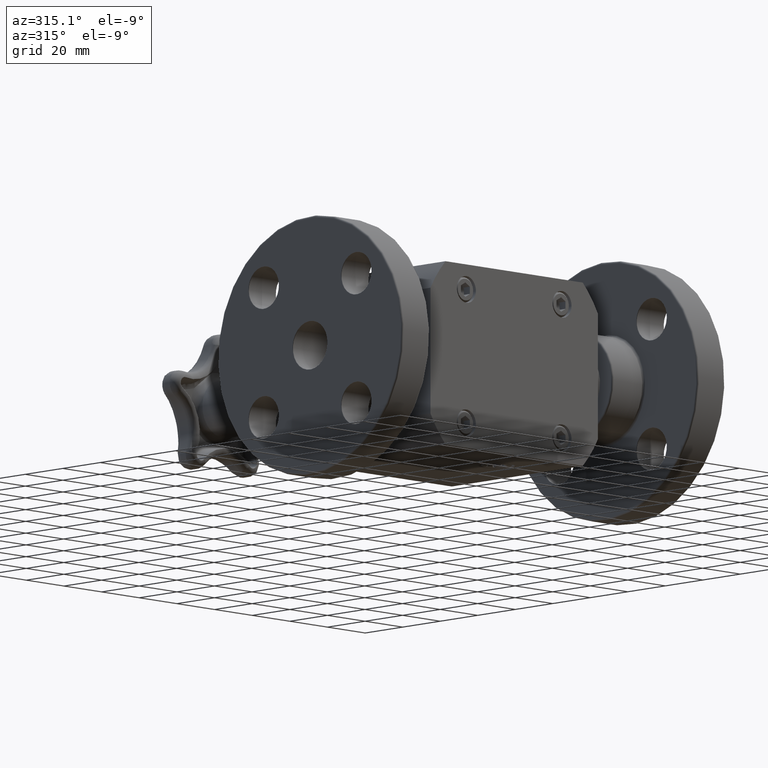
[diagram: clean part render]
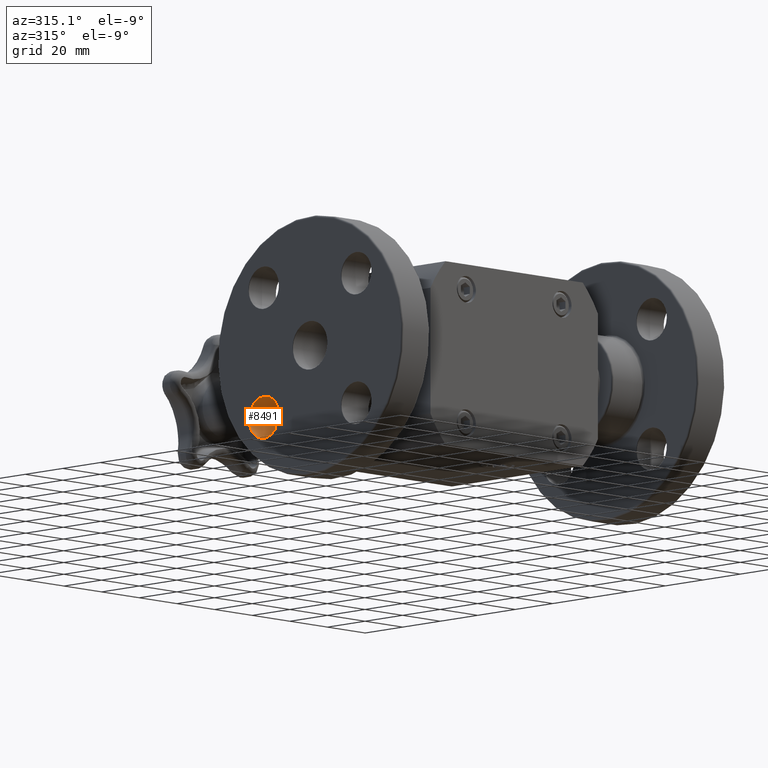
[diagram: same view with one face highlighted and labeled with its STEP entity id]
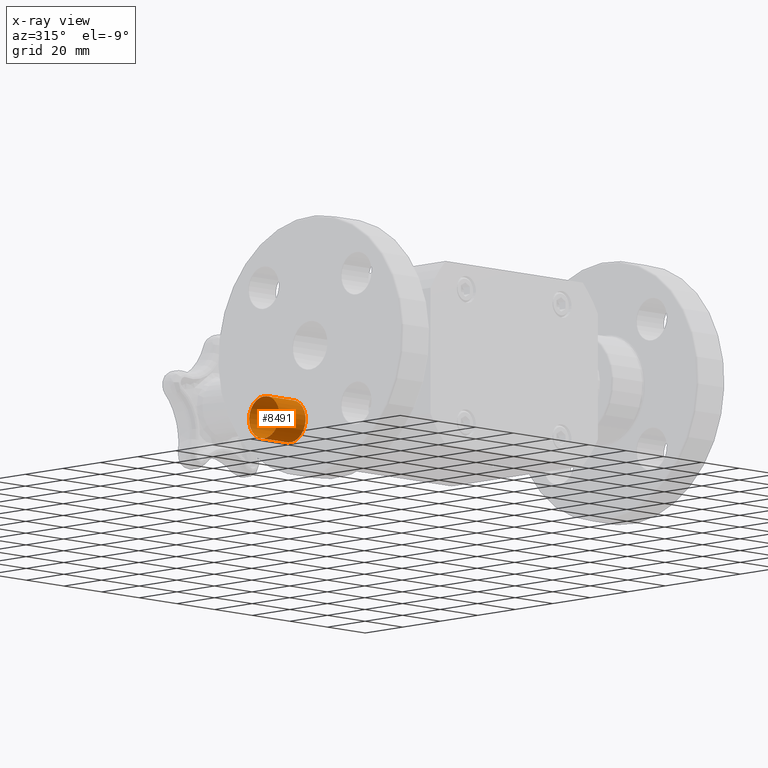
[diagram: x-ray of the same camera — body ghosted, the highlighted face saturated]
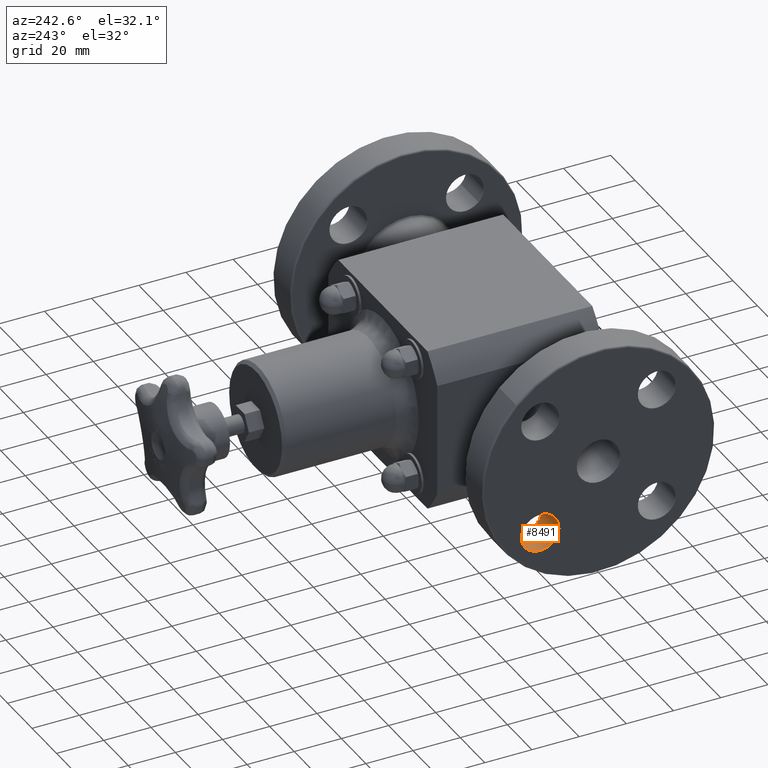
[diagram: same view with one face highlighted and labeled with its STEP entity id]
A machine part, auxiliary view. The second image highlights one B-rep face of the part: STEP entity #8491.
The next image is the same camera in x-ray: the body ghosted, the highlighted face saturated — about 0% of this face is hidden behind the body in this view.
A second angle (auxiliary view) of the same face is appended — the face is thin or edge-on in the first view.
In plain terms, the highlighted cylindrical surface (bore or boss wall) has radius 8.001 mm, axis along (-1, -0, -0).
Its self-contained STEP definition (entity closure, byte-faithful):
#8457=CARTESIAN_POINT('',(-2.809999999999997,1.649533188057741,-1.195010460205268));
#8458=VERTEX_POINT('',#8457);
#8459=CARTESIAN_POINT('',(-2.809999999999997,1.872271824131503,-0.972271824131505));
#8460=DIRECTION('',(-1.0,-9.132024E-016,-9.132024E-016));
#8461=DIRECTION('',(-1.291463E-015,0.707106781186547,0.707106781186548));
#8462=AXIS2_PLACEMENT_3D('',#8459,#8460,#8461);
#8463=CIRCLE('',#8462,0.315000000000000);
#8464=EDGE_CURVE('',#8458,#8458,#8463,.T.);
#8472=CARTESIAN_POINT('',(-2.799999999999997,1.872271824131503,-0.972271824131505));
#8473=DIRECTION('',(-1.0,-2.127460E-016,-1.613659E-015));
#8474=DIRECTION('',(-1.291463E-015,0.707106781186547,0.707106781186548));
#8475=AXIS2_PLACEMENT_3D('',#8472,#8473,#8474);
#8476=CYLINDRICAL_SURFACE('',#8475,0.315000000000000);
#8477=CARTESIAN_POINT('',(-3.364999999999997,1.649533188057740,-1.195010460205269));
#8478=VERTEX_POINT('',#8477);
#8479=CARTESIAN_POINT('',(-3.364999999999997,1.872271824131503,-0.972271824131506));
#8480=DIRECTION('',(1.0,9.132024E-016,9.132024E-016));
#8481=DIRECTION('',(-1.291463E-015,0.707106781186547,0.707106781186548));
#8482=AXIS2_PLACEMENT_3D('',#8479,#8480,#8481);
#8483=CIRCLE('',#8482,0.315000000000000);
#8484=EDGE_CURVE('',#8478,#8478,#8483,.T.);
#8485=ORIENTED_EDGE('',*,*,#8484,.F.);
#8486=EDGE_LOOP('',(#8485));
#8487=FACE_OUTER_BOUND('',#8486,.T.);
#8488=ORIENTED_EDGE('',*,*,#8464,.F.);
#8489=EDGE_LOOP('',(#8488));
#8490=FACE_BOUND('',#8489,.T.);
#8491=ADVANCED_FACE('',(#8487,#8490),#8476,.F.);